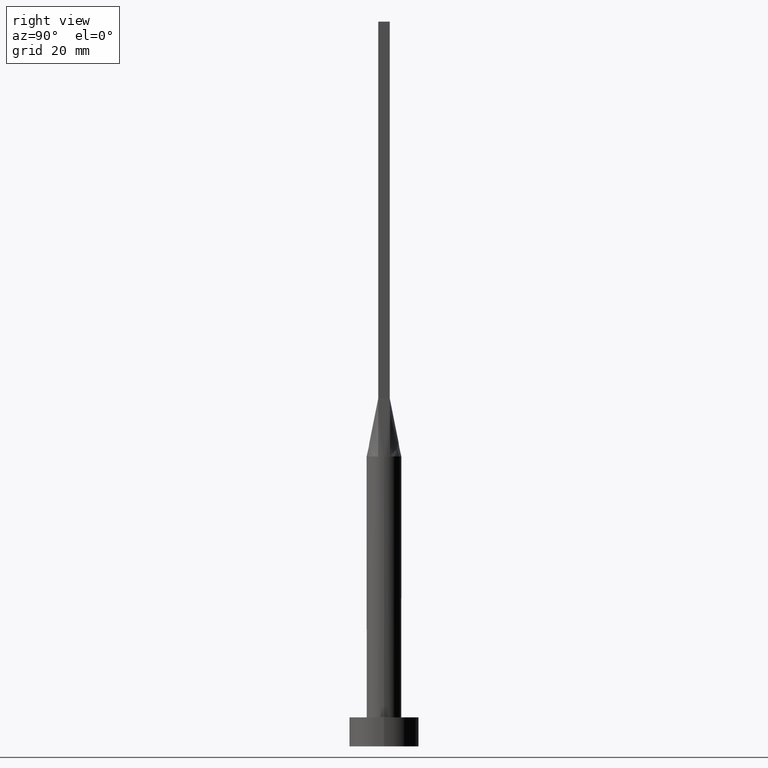
[diagram: clean part render]
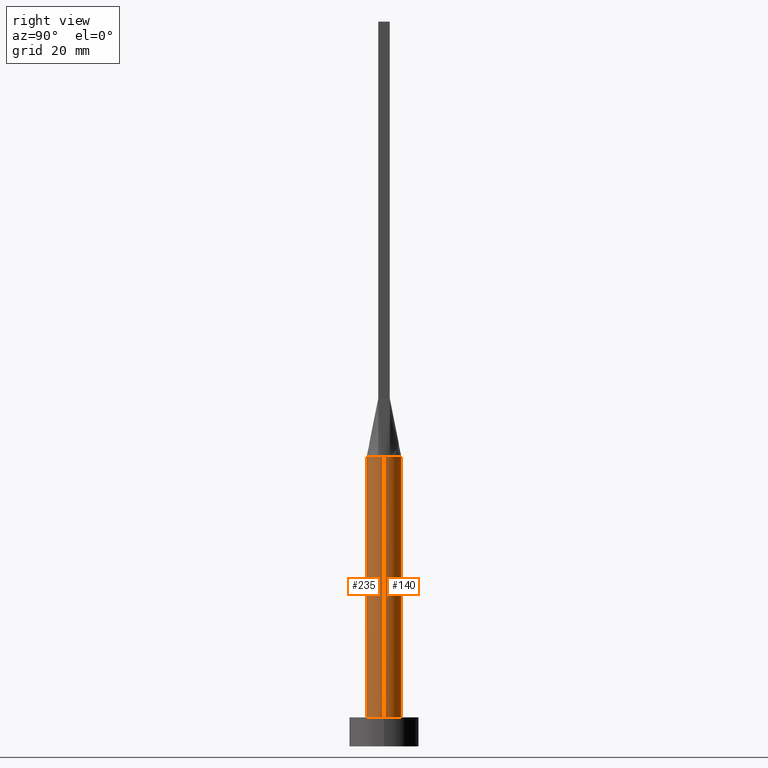
[diagram: same view with one multi-face feature highlighted, each face labeled with its STEP entity id]
A machine part, right view. The highlighted faces form ONE feature: a constant-radius fillet chain: 2 tangent blend faces with common blend radius 3 mm. The faces share edges in the B-rep.
Their STEP definitions:
[1] entity #235 (Cylinder):
#12 = FACE_OUTER_BOUND ( 'NONE', #35, .T. ) ;
#16 = CYLINDRICAL_SURFACE ( 'NONE', #294, 3.000000000000000444 ) ;
#25 = DIRECTION ( 'NONE',  ( 1.000000000000000000, 0.000000000000000000, 0.000000000000000000 ) ) ;
#35 = EDGE_LOOP ( 'NONE', ( #178, #382, #395, #492, #220, #570 ) ) ;
#37 = AXIS2_PLACEMENT_3D ( 'NONE', #577, #239, #70 ) ;
#46 = CARTESIAN_POINT ( 'NONE',  ( -3.000000000000000444, 0.000000000000000000, 5.000000000000000000 ) ) ;
#54 = VECTOR ( 'NONE', #336, 1000.000000000000000 ) ;
#62 = DIRECTION ( 'NONE',  ( -1.000000000000000000, 0.000000000000000000, 0.000000000000000000 ) ) ;
#70 = DIRECTION ( 'NONE',  ( 1.000000000000000000, -1.776356839400250465E-15, 0.000000000000000000 ) ) ;
#71 = AXIS2_PLACEMENT_3D ( 'NONE', #491, #499, #553 ) ;
#72 = VERTEX_POINT ( 'NONE', #552 ) ;
#82 = CARTESIAN_POINT ( 'NONE',  ( -3.000000000000000444, -1.370010780910362699E-16, 49.99999999999998579 ) ) ;
#84 = VERTEX_POINT ( 'NONE', #510 ) ;
#88 = AXIS2_PLACEMENT_3D ( 'NONE', #424, #159, #25 ) ;
#97 = DIRECTION ( 'NONE',  ( -0.000000000000000000, -0.000000000000000000, -1.000000000000000000 ) ) ;
#145 = DIRECTION ( 'NONE',  ( -0.000000000000000000, -0.000000000000000000, -1.000000000000000000 ) ) ;
#150 = CARTESIAN_POINT ( 'NONE',  ( 3.000000000000000444, 3.673940397442059868E-16, 49.99999999999999289 ) ) ;
#152 = EDGE_CURVE ( 'NONE', #352, #84, #196, .T. ) ;
#159 = DIRECTION ( 'NONE',  ( 0.000000000000000000, 0.000000000000000000, 1.000000000000000000 ) ) ;
#178 = ORIENTED_EDGE ( 'NONE', *, *, #152, .F. ) ;
#182 = CARTESIAN_POINT ( 'NONE',  ( 0.000000000000000000, 0.000000000000000000, 49.99999999999999289 ) ) ;
#196 = LINE ( 'NONE', #150, #578 ) ;
#197 = CARTESIAN_POINT ( 'NONE',  ( 0.000000000000000000, 0.000000000000000000, 5.000000000000000000 ) ) ;
#204 = LINE ( 'NONE', #573, #54 ) ;
#220 = ORIENTED_EDGE ( 'NONE', *, *, #475, .T. ) ;
#223 = AXIS2_PLACEMENT_3D ( 'NONE', #197, #331, #375 ) ;
#235 = ADVANCED_FACE ( 'NONE', ( #12 ), #16, .T. ) ;
#239 = DIRECTION ( 'NONE',  ( 0.000000000000000000, 0.000000000000000000, 1.000000000000000000 ) ) ;
#243 = CIRCLE ( 'NONE', #88, 3.000000000000000444 ) ;
#294 = AXIS2_PLACEMENT_3D ( 'NONE', #182, #145, #62 ) ;
#305 = EDGE_CURVE ( 'NONE', #340, #485, #498, .T. ) ;
#331 = DIRECTION ( 'NONE',  ( 0.000000000000000000, 0.000000000000000000, 1.000000000000000000 ) ) ;
#336 = DIRECTION ( 'NONE',  ( -0.000000000000000000, -0.000000000000000000, -1.000000000000000000 ) ) ;
#340 = VERTEX_POINT ( 'NONE', #82 ) ;
#350 = VERTEX_POINT ( 'NONE', #46 ) ;
#352 = VERTEX_POINT ( 'NONE', #398 ) ;
#354 = CIRCLE ( 'NONE', #37, 3.000000000000000444 ) ;
#375 = DIRECTION ( 'NONE',  ( 1.000000000000000000, 0.000000000000000000, 0.000000000000000000 ) ) ;
#376 = CIRCLE ( 'NONE', #223, 3.000000000000000444 ) ;
#377 = CARTESIAN_POINT ( 'NONE',  ( -2.819413526938078896, -1.025241406939938926, 49.99999999999999289 ) ) ;
#382 = ORIENTED_EDGE ( 'NONE', *, *, #390, .F. ) ;
#390 = EDGE_CURVE ( 'NONE', #72, #352, #354, .T. ) ;
#395 = ORIENTED_EDGE ( 'NONE', *, *, #524, .F. ) ;
#398 = CARTESIAN_POINT ( 'NONE',  ( 3.000000000000000444, 7.514166843208513631E-18, 49.99999999999998579 ) ) ;
#424 = CARTESIAN_POINT ( 'NONE',  ( 0.000000000000000000, 0.000000000000000000, 49.99999999999999289 ) ) ;
#475 = EDGE_CURVE ( 'NONE', #340, #350, #204, .T. ) ;
#485 = VERTEX_POINT ( 'NONE', #377 ) ;
#491 = CARTESIAN_POINT ( 'NONE',  ( 0.000000000000000000, 0.000000000000000000, 49.99999999999999289 ) ) ;
#492 = ORIENTED_EDGE ( 'NONE', *, *, #305, .F. ) ;
#498 = CIRCLE ( 'NONE', #71, 3.000000000000000444 ) ;
#499 = DIRECTION ( 'NONE',  ( 0.000000000000000000, 0.000000000000000000, 1.000000000000000000 ) ) ;
#510 = CARTESIAN_POINT ( 'NONE',  ( 3.000000000000000444, 3.673940397442059868E-16, 5.000000000000000000 ) ) ;
#524 = EDGE_CURVE ( 'NONE', #485, #72, #243, .T. ) ;
#531 = EDGE_CURVE ( 'NONE', #350, #84, #376, .T. ) ;
#552 = CARTESIAN_POINT ( 'NONE',  ( 2.819430526142641558, -1.025247683279451261, 49.99999999999999289 ) ) ;
#553 = DIRECTION ( 'NONE',  ( 1.000000000000000000, 0.000000000000000000, 0.000000000000000000 ) ) ;
#570 = ORIENTED_EDGE ( 'NONE', *, *, #531, .T. ) ;
#573 = CARTESIAN_POINT ( 'NONE',  ( -3.000000000000000444, 0.000000000000000000, 49.99999999999999289 ) ) ;
#577 = CARTESIAN_POINT ( 'NONE',  ( 0.000000000000000000, 0.000000000000000000, 49.99999999999999289 ) ) ;
#578 = VECTOR ( 'NONE', #97, 1000.000000000000000 ) ;
[2] entity #140 (Cylinder):
#3 = EDGE_CURVE ( 'NONE', #84, #350, #478, .T. ) ;
#9 = B_SPLINE_CURVE_WITH_KNOTS ( 'NONE', 3,
 ( #287, #246, #205, #36, #480, #471, #113, #155, #476, #28, #434, #428, #384, #323, #565, #73, #31, #200 ),
 .UNSPECIFIED., .F., .F.,
 ( 4, 2, 2, 2, 2, 2, 2, 2, 4 ),
 ( 0.000000000000000000, 0.1249999999999998890, 0.2499999999999997780, 0.3749999999999997780, 0.4999999999999997780, 0.6249999999999997780, 0.7499999999999997780, 0.8749999999999998890, 1.000000000000000000 ),
 .UNSPECIFIED. ) ;
#10 = VERTEX_POINT ( 'NONE', #162 ) ;
#28 = CARTESIAN_POINT ( 'NONE',  ( -0.3502136323054376721, 2.999999999999999112, 50.00000000000001421 ) ) ;
#30 = DIRECTION ( 'NONE',  ( 1.000000000000000000, 0.000000000000000000, 0.000000000000000000 ) ) ;
#31 = CARTESIAN_POINT ( 'NONE',  ( -2.739088299662392423, 1.246032108968142316, 49.99999999999998579 ) ) ;
#32 = DIRECTION ( 'NONE',  ( 0.000000000000000000, 0.000000000000000000, 1.000000000000000000 ) ) ;
#36 = CARTESIAN_POINT ( 'NONE',  ( 2.314486317179579977, 1.928337902455807384, 50.00000000000001421 ) ) ;
#46 = CARTESIAN_POINT ( 'NONE',  ( -3.000000000000000444, 0.000000000000000000, 5.000000000000000000 ) ) ;
#48 = ORIENTED_EDGE ( 'NONE', *, *, #468, .F. ) ;
#51 = ORIENTED_EDGE ( 'NONE', *, *, #400, .F. ) ;
#54 = VECTOR ( 'NONE', #336, 1000.000000000000000 ) ;
#73 = CARTESIAN_POINT ( 'NONE',  ( -2.625980160873452096, 1.476334031700886396, 50.00000000000000711 ) ) ;
#82 = CARTESIAN_POINT ( 'NONE',  ( -3.000000000000000444, -1.370010780910362699E-16, 49.99999999999998579 ) ) ;
#84 = VERTEX_POINT ( 'NONE', #510 ) ;
#97 = DIRECTION ( 'NONE',  ( -0.000000000000000000, -0.000000000000000000, -1.000000000000000000 ) ) ;
#113 = CARTESIAN_POINT ( 'NONE',  ( 1.338960936578149630, 2.706038443291637563, 50.00000000000000000 ) ) ;
#115 = CARTESIAN_POINT ( 'NONE',  ( -2.819429393986302657, 1.025247261300842760, 49.99999999999999289 ) ) ;
#140 = ADVANCED_FACE ( 'NONE', ( #144 ), #234, .T. ) ;
#144 = FACE_OUTER_BOUND ( 'NONE', #212, .T. ) ;
#150 = CARTESIAN_POINT ( 'NONE',  ( 3.000000000000000444, 3.673940397442059868E-16, 49.99999999999999289 ) ) ;
#152 = EDGE_CURVE ( 'NONE', #352, #84, #196, .T. ) ;
#155 = CARTESIAN_POINT ( 'NONE',  ( 0.6998073349918605413, 2.936959335800557014, 49.99999999999998579 ) ) ;
#162 = CARTESIAN_POINT ( 'NONE',  ( 2.819412401233197141, 1.025240989080170362, 49.99999999999999289 ) ) ;
#196 = LINE ( 'NONE', #150, #578 ) ;
#198 = DIRECTION ( 'NONE',  ( 0.000000000000000000, 0.000000000000000000, 1.000000000000000000 ) ) ;
#200 = CARTESIAN_POINT ( 'NONE',  ( -2.819429393986302657, 1.025247261300842760, 49.99999999999999289 ) ) ;
#204 = LINE ( 'NONE', #573, #54 ) ;
#205 = CARTESIAN_POINT ( 'NONE',  ( 2.625980160873452540, 1.476334031700886618, 50.00000000000000711 ) ) ;
#212 = EDGE_LOOP ( 'NONE', ( #51, #296, #300, #500, #48, #391 ) ) ;
#234 = CYLINDRICAL_SURFACE ( 'NONE', #396, 3.000000000000000444 ) ;
#242 = DIRECTION ( 'NONE',  ( 1.000000000000000000, 0.000000000000000000, 0.000000000000000000 ) ) ;
#246 = CARTESIAN_POINT ( 'NONE',  ( 2.739088299662392867, 1.246032108968142538, 50.00000000000000711 ) ) ;
#262 = VERTEX_POINT ( 'NONE', #115 ) ;
#282 = AXIS2_PLACEMENT_3D ( 'NONE', #520, #522, #283 ) ;
#283 = DIRECTION ( 'NONE',  ( 1.000000000000000000, 0.000000000000000000, 0.000000000000000000 ) ) ;
#287 = CARTESIAN_POINT ( 'NONE',  ( 2.819412401233197141, 1.025240989080170362, 49.99999999999999289 ) ) ;
#296 = ORIENTED_EDGE ( 'NONE', *, *, #152, .T. ) ;
#300 = ORIENTED_EDGE ( 'NONE', *, *, #3, .T. ) ;
#315 = AXIS2_PLACEMENT_3D ( 'NONE', #426, #32, #30 ) ;
#323 = CARTESIAN_POINT ( 'NONE',  ( -2.115507543051069916, 2.149870311632977593, 49.99999999999999289 ) ) ;
#336 = DIRECTION ( 'NONE',  ( -0.000000000000000000, -0.000000000000000000, -1.000000000000000000 ) ) ;
#340 = VERTEX_POINT ( 'NONE', #82 ) ;
#344 = CIRCLE ( 'NONE', #544, 3.000000000000000444 ) ;
#350 = VERTEX_POINT ( 'NONE', #46 ) ;
#352 = VERTEX_POINT ( 'NONE', #398 ) ;
#367 = CARTESIAN_POINT ( 'NONE',  ( 0.000000000000000000, 0.000000000000000000, 49.99999999999999289 ) ) ;
#384 = CARTESIAN_POINT ( 'NONE',  ( -1.627925520694712747, 2.539128397820341831, 50.00000000000000000 ) ) ;
#391 = ORIENTED_EDGE ( 'NONE', *, *, #415, .F. ) ;
#396 = AXIS2_PLACEMENT_3D ( 'NONE', #367, #420, #560 ) ;
#398 = CARTESIAN_POINT ( 'NONE',  ( 3.000000000000000444, 7.514166843208513631E-18, 49.99999999999998579 ) ) ;
#400 = EDGE_CURVE ( 'NONE', #352, #10, #344, .T. ) ;
#415 = EDGE_CURVE ( 'NONE', #10, #262, #9, .T. ) ;
#420 = DIRECTION ( 'NONE',  ( -0.000000000000000000, -0.000000000000000000, -1.000000000000000000 ) ) ;
#426 = CARTESIAN_POINT ( 'NONE',  ( 0.000000000000000000, 0.000000000000000000, 5.000000000000000000 ) ) ;
#427 = CIRCLE ( 'NONE', #282, 3.000000000000000444 ) ;
#428 = CARTESIAN_POINT ( 'NONE',  ( -1.338960936578149408, 2.706038443291637119, 49.99999999999998579 ) ) ;
#434 = CARTESIAN_POINT ( 'NONE',  ( -0.6998073349918608743, 2.936959335800557014, 50.00000000000000000 ) ) ;
#468 = EDGE_CURVE ( 'NONE', #262, #340, #427, .T. ) ;
#471 = CARTESIAN_POINT ( 'NONE',  ( 1.627925520694712080, 2.539128397820340943, 49.99999999999998579 ) ) ;
#475 = EDGE_CURVE ( 'NONE', #340, #350, #204, .T. ) ;
#476 = CARTESIAN_POINT ( 'NONE',  ( 0.3502136323054376721, 3.000000000000000444, 50.00000000000000000 ) ) ;
#478 = CIRCLE ( 'NONE', #315, 3.000000000000000444 ) ;
#480 = CARTESIAN_POINT ( 'NONE',  ( 2.115507543051069916, 2.149870311632976705, 50.00000000000000711 ) ) ;
#500 = ORIENTED_EDGE ( 'NONE', *, *, #475, .F. ) ;
#510 = CARTESIAN_POINT ( 'NONE',  ( 3.000000000000000444, 3.673940397442059868E-16, 5.000000000000000000 ) ) ;
#520 = CARTESIAN_POINT ( 'NONE',  ( 0.000000000000000000, 0.000000000000000000, 49.99999999999999289 ) ) ;
#522 = DIRECTION ( 'NONE',  ( 0.000000000000000000, 0.000000000000000000, 1.000000000000000000 ) ) ;
#525 = CARTESIAN_POINT ( 'NONE',  ( 0.000000000000000000, 0.000000000000000000, 49.99999999999999289 ) ) ;
#544 = AXIS2_PLACEMENT_3D ( 'NONE', #525, #198, #242 ) ;
#560 = DIRECTION ( 'NONE',  ( -1.000000000000000000, 0.000000000000000000, 0.000000000000000000 ) ) ;
#565 = CARTESIAN_POINT ( 'NONE',  ( -2.314486317179579977, 1.928337902455808051, 50.00000000000000711 ) ) ;
#573 = CARTESIAN_POINT ( 'NONE',  ( -3.000000000000000444, 0.000000000000000000, 49.99999999999999289 ) ) ;
#578 = VECTOR ( 'NONE', #97, 1000.000000000000000 ) ;